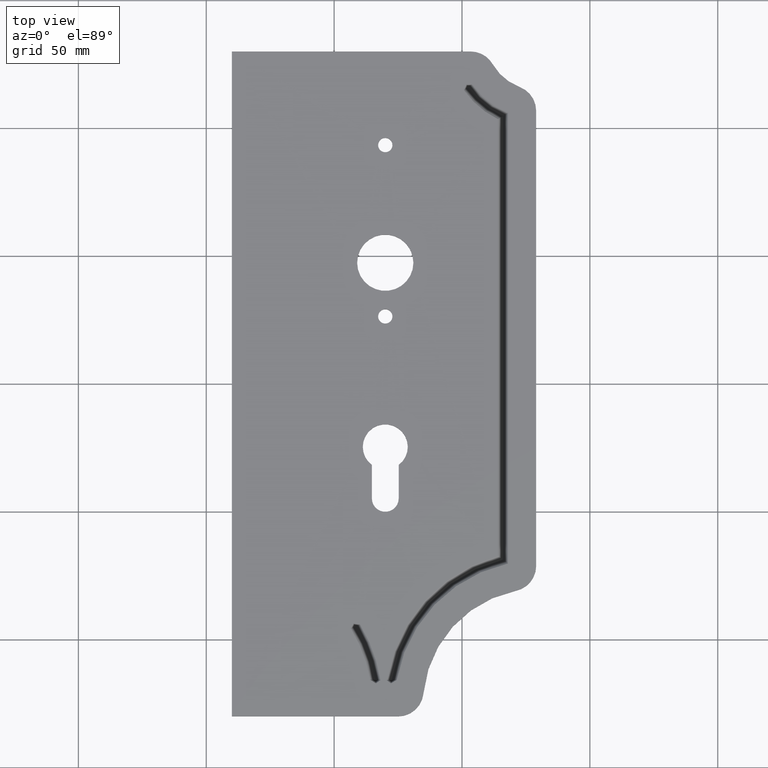
[diagram: clean part render]
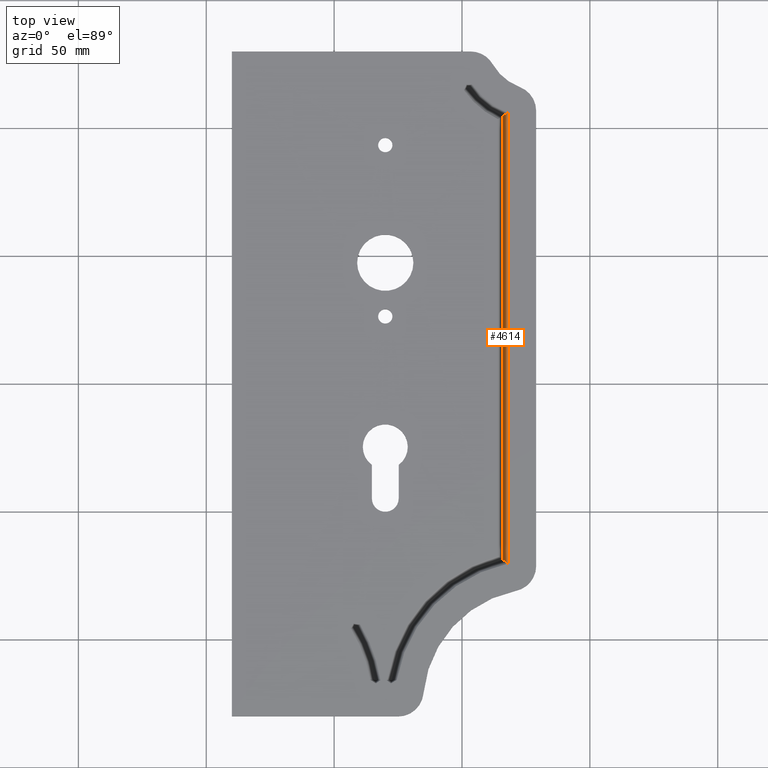
[diagram: same view with one face highlighted and labeled with its STEP entity id]
A machine part, top view. The second image highlights one B-rep face of the part: STEP entity #4614.
In plain terms, the highlighted face is a freeform B-spline surface patch.
Its self-contained STEP definition (entity closure, byte-faithful):
#33 = CARTESIAN_POINT ( 'NONE',  ( 167.1755876979223956, 107.6852547003015701, 3.368757016676136473 ) ) ;
#61 = CARTESIAN_POINT ( 'NONE',  ( 166.4418210881358675, -69.02702953792308449, 2.764268481563709301 ) ) ;
#89 = CARTESIAN_POINT ( 'NONE',  ( 166.7351292579155313, -69.25682766386795208, 3.006527393220120636 ) ) ;
#182 = FACE_OUTER_BOUND ( 'NONE', #6501, .T. ) ;
#335 = CARTESIAN_POINT ( 'NONE',  ( 167.9484545786997671, -70.20743154608211967, 4.000000000000000000 ) ) ;
#405 = CARTESIAN_POINT ( 'NONE',  ( 166.6608156248268244, -69.19860516829693609, 2.947007318106733553 ) ) ;
#635 = CARTESIAN_POINT ( 'NONE',  ( 167.8869004250061607, -70.15920571870898925, 3.949938048618555353 ) ) ;
#662 = CARTESIAN_POINT ( 'NONE',  ( 167.6166411091973600, -69.94746567635471024, 3.729722531046911094 ) ) ;
#693 = CARTESIAN_POINT ( 'NONE',  ( 167.4695528388134846, -69.83222644211150509, 3.609539347714351809 ) ) ;
#816 = LINE ( 'NONE', #335, #5948 ) ;
#1234 = CARTESIAN_POINT ( 'NONE',  ( 167.9484604528943237, 107.0797321510325872, 4.000004777478630480 ) ) ;
#1270 = CARTESIAN_POINT ( 'NONE',  ( 167.3225702658108105, 107.5700982807831565, 3.489148180100746455 ) ) ;
#1296 = CARTESIAN_POINT ( 'NONE',  ( 167.9484604528943521, -70.20743614833682500, 4.000004777478630480 ) ) ;
#1426 = EDGE_CURVE ( 'NONE', #7533, #1994, #3376, .T. ) ;
#1789 = B_SPLINE_CURVE_WITH_KNOTS ( 'NONE', 1,
 ( #2124, #7523 ),
 .UNSPECIFIED., .F., .F.,
 ( 2, 2 ),
 ( 0.000000000000000000, 0.9487631663378248703 ),
 .UNSPECIFIED. ) ;
#1823 = CARTESIAN_POINT ( 'NONE',  ( 166.1487129361258894, -68.79738811988256941, 2.521615571360073638 ) ) ;
#1849 = CARTESIAN_POINT ( 'NONE',  ( 167.8253594967437721, -70.11099025306333488, 3.899833427831174149 ) ) ;
#1994 = VERTEX_POINT ( 'NONE', #4142 ) ;
#2124 = CARTESIAN_POINT ( 'NONE',  ( 166.0023075073470977, -68.68268387149156240, 2.400000000000007017 ) ) ;
#2257 = B_SPLINE_SURFACE_WITH_KNOTS ( 'NONE', 3, 1, ( 
 ( #6619, #5412 ),
 ( #1823, #2444 ),
 ( #7243, #6020 ),
 ( #61, #2417 ),
 ( #3601, #3036 ),
 ( #89, #4243 ),
 ( #6073, #5467 ),
 ( #4268, #7219 ),
 ( #3066, #33 ),
 ( #7269, #1270 ),
 ( #693, #3628 ),
 ( #662, #4835 ),
 ( #6644, #4209 ),
 ( #1849, #3656 ),
 ( #635, #4860 ),
 ( #1296, #1234 ) ),
 .UNSPECIFIED., .F., .F., .F.,
 ( 4, 3, 3, 3, 3, 4 ),
 ( 2, 2 ),
 ( 0.000000000000000000, 0.0006666599414983480354, 0.001333316901047452117, 0.001999821244059622055, 0.002666325625561212845, 0.002944896947294871684 ),
 ( 0.000000000000000000, 1.000000000000000000 ),
 .UNSPECIFIED. ) ;
#2417 = CARTESIAN_POINT ( 'NONE',  ( 166.4418210881358391, 108.2601387614463277, 2.764268481563709301 ) ) ;
#2444 = CARTESIAN_POINT ( 'NONE',  ( 166.1487129361258610, 108.4897801794868428, 2.521615571360073638 ) ) ;
#2508 = EDGE_CURVE ( 'NONE', #3072, #1994, #816, .T. ) ;
#2675 = CARTESIAN_POINT ( 'NONE',  ( 167.2974793711863413, 105.5990450948435466, 3.470584327593678520 ) ) ;
#2839 = CARTESIAN_POINT ( 'NONE',  ( 167.3095205247279864, -69.70682770333129952, 3.480340651442377808 ) ) ;
#3036 = CARTESIAN_POINT ( 'NONE',  ( 166.5884247986643345, 108.1452791652703382, 2.885496130342086296 ) ) ;
#3066 = CARTESIAN_POINT ( 'NONE',  ( 167.1755876979224240, -69.60191359906784214, 3.368757016676136473 ) ) ;
#3072 = VERTEX_POINT ( 'NONE', #4846 ) ;
#3226 = CARTESIAN_POINT ( 'NONE',  ( 166.0023075073470693, 104.7568341896148922, 2.400000000000006128 ) ) ;
#3376 = B_SPLINE_CURVE_WITH_KNOTS ( 'NONE', 3,
 ( #6915, #3925, #2675, #6866 ),
 .UNSPECIFIED., .F., .F.,
 ( 4, 4 ),
 ( 0.000000000000000000, 0.5523997686060949652 ),
 .UNSPECIFIED. ) ;
#3601 = CARTESIAN_POINT ( 'NONE',  ( 166.5884247986643629, -69.14188913409907400, 2.885496130342086296 ) ) ;
#3603 = EDGE_CURVE ( 'NONE', #3072, #4871, #5442, .T. ) ;
#3628 = CARTESIAN_POINT ( 'NONE',  ( 167.4695528388134562, 107.4549418572579071, 3.609539347714351809 ) ) ;
#3656 = CARTESIAN_POINT ( 'NONE',  ( 167.8253594967437436, 107.1761780463060774, 3.899833427831174149 ) ) ;
#3844 = ORIENTED_EDGE ( 'NONE', *, *, #1426, .F. ) ;
#3915 = CARTESIAN_POINT ( 'NONE',  ( 167.9484634677664303, -70.20743199001164214, 4.000001931640524866 ) ) ;
#3925 = CARTESIAN_POINT ( 'NONE',  ( 166.6488552697563534, 105.1772645521446492, 2.937072130404357218 ) ) ;
#4142 = CARTESIAN_POINT ( 'NONE',  ( 167.9484426974334212, 106.0223485262961276, 3.999999999997017941 ) ) ;
#4209 = CARTESIAN_POINT ( 'NONE',  ( 167.7638374875675140, 107.2243786894169801, 3.849691395421064755 ) ) ;
#4243 = CARTESIAN_POINT ( 'NONE',  ( 166.7351292579155029, 108.0303406355014602, 3.006527393220120636 ) ) ;
#4268 = CARTESIAN_POINT ( 'NONE',  ( 167.0287106448981831, -69.48683984727077245, 3.248157718760777080 ) ) ;
#4406 = EDGE_CURVE ( 'NONE', #4871, #7533, #1789, .T. ) ;
#4614 = ADVANCED_FACE ( 'NONE', ( #182 ), #2257, .F. ) ;
#4835 = CARTESIAN_POINT ( 'NONE',  ( 167.6166411091973316, 107.3397026230147020, 3.729722531046911094 ) ) ;
#4846 = CARTESIAN_POINT ( 'NONE',  ( 167.9484634677664303, -70.20743199001164214, 4.000001931640524866 ) ) ;
#4860 = CARTESIAN_POINT ( 'NONE',  ( 167.8869004250061323, 107.1279625806604230, 3.949938048618555353 ) ) ;
#4871 = VERTEX_POINT ( 'NONE', #5509 ) ;
#5027 = ORIENTED_EDGE ( 'NONE', *, *, #3603, .F. ) ;
#5412 = CARTESIAN_POINT ( 'NONE',  ( 166.0023075073470693, 108.6044844278778498, 2.400000000000007017 ) ) ;
#5442 = B_SPLINE_CURVE_WITH_KNOTS ( 'NONE', 3,
 ( #3915, #2839, #405, #7037 ),
 .UNSPECIFIED., .F., .F.,
 ( 4, 4 ),
 ( 0.4561291494407089253, 1.000000000000000000 ),
 .UNSPECIFIED. ) ;
#5467 = CARTESIAN_POINT ( 'NONE',  ( 166.8819367571538521, 107.9153213770029112, 3.127356387855493303 ) ) ;
#5509 = CARTESIAN_POINT ( 'NONE',  ( 166.0023075073470977, -68.68268387149156240, 2.400000000000007017 ) ) ;
#5786 = DIRECTION ( 'NONE',  ( -9.347942410577991442E-17, 1.000000000000000000, 0.000000000000000000 ) ) ;
#5948 = VECTOR ( 'NONE', #5786, 1000.000000000000000 ) ;
#6020 = CARTESIAN_POINT ( 'NONE',  ( 166.2952167188783221, 108.3749988737167200, 2.643040288077600497 ) ) ;
#6073 = CARTESIAN_POINT ( 'NONE',  ( 166.8819367571538805, -69.37184692236650108, 3.127356387855493303 ) ) ;
#6501 = EDGE_LOOP ( 'NONE', ( #5027, #7216, #3844, #6527 ) ) ;
#6527 = ORIENTED_EDGE ( 'NONE', *, *, #4406, .F. ) ;
#6619 = CARTESIAN_POINT ( 'NONE',  ( 166.0023075073470977, -68.68268387149156240, 2.400000000000007017 ) ) ;
#6644 = CARTESIAN_POINT ( 'NONE',  ( 167.7638374875675424, -70.06278960995243210, 3.849691395421064755 ) ) ;
#6866 = CARTESIAN_POINT ( 'NONE',  ( 167.9484426974334212, 106.0223485262961276, 3.999999999997017941 ) ) ;
#6915 = CARTESIAN_POINT ( 'NONE',  ( 166.0023075073470693, 104.7568341896148922, 2.400000000000006128 ) ) ;
#7037 = CARTESIAN_POINT ( 'NONE',  ( 166.0023075073470977, -68.68268387149156240, 2.400000000000007017 ) ) ;
#7216 = ORIENTED_EDGE ( 'NONE', *, *, #2508, .T. ) ;
#7219 = CARTESIAN_POINT ( 'NONE',  ( 167.0287106448981547, 107.8003284520986398, 3.248157718760777080 ) ) ;
#7243 = CARTESIAN_POINT ( 'NONE',  ( 166.2952167188783505, -68.91216942565269221, 2.643040288077600497 ) ) ;
#7269 = CARTESIAN_POINT ( 'NONE',  ( 167.3225702658108389, -69.71707001858625574, 3.489148180100746455 ) ) ;
#7523 = CARTESIAN_POINT ( 'NONE',  ( 166.0023075073470693, 104.7568341896148922, 2.400000000000006128 ) ) ;
#7533 = VERTEX_POINT ( 'NONE', #3226 ) ;